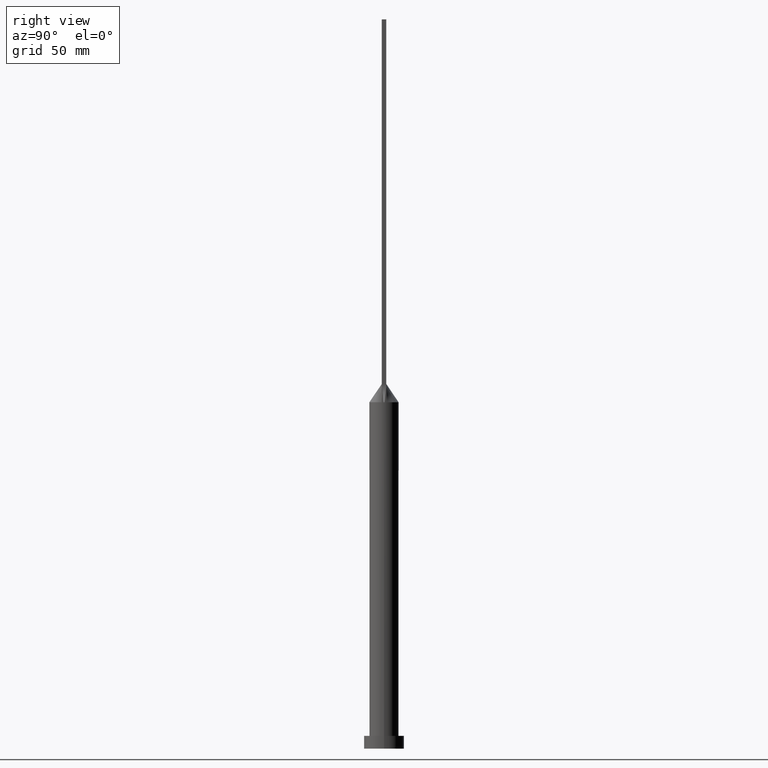
[diagram: clean part render]
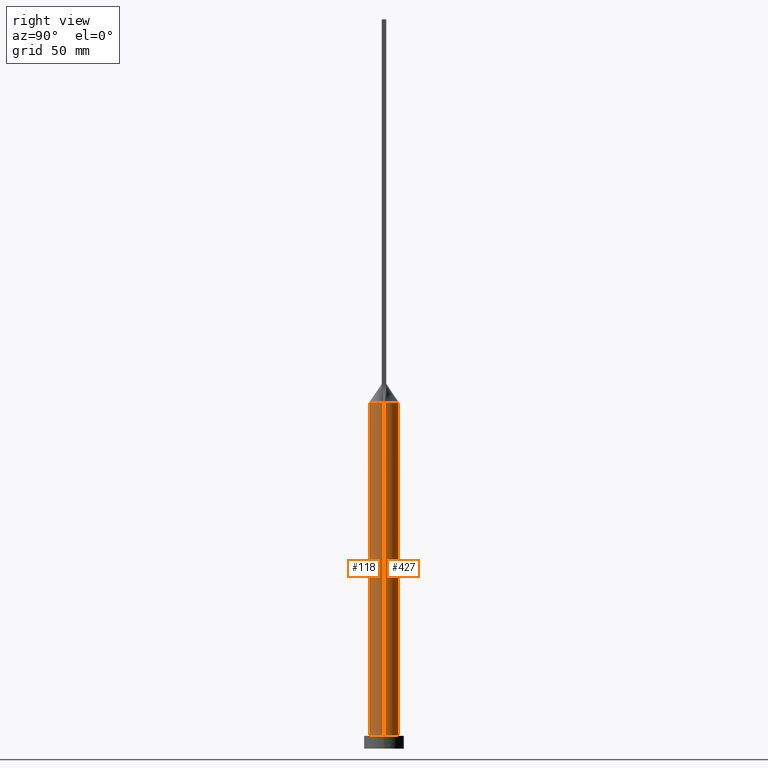
[diagram: same view with one multi-face feature highlighted, each face labeled with its STEP entity id]
A machine part, right view. The highlighted faces form ONE feature: a constant-radius fillet chain: 2 tangent blend faces with common blend radius 8 mm. The faces share edges in the B-rep.
Their STEP definitions:
[1] entity #427 (Cylinder):
#1 = DIRECTION ( 'NONE',  ( 0.000000000000000000, 0.000000000000000000, 1.000000000000000000 ) ) ;
#3 = CARTESIAN_POINT ( 'NONE',  ( 8.000000000000000000, 9.797174393178825657E-16, 190.0000000000000000 ) ) ;
#17 = CARTESIAN_POINT ( 'NONE',  ( 4.217034177653714799, 6.817775467282659818, 189.9999999999999716 ) ) ;
#19 = B_SPLINE_CURVE_WITH_KNOTS ( 'NONE', 3,
 ( #309, #627, #313, #260, #128, #183, #77, #70, #468, #17, #480, #378, #28, #382, #617, #222, #522, #212, #264, #22, #624, #216, #418, #370, #316, #196, #48, #343, #391, #443 ),
 .UNSPECIFIED., .F., .F.,
 ( 4, 2, 2, 2, 2, 2, 2, 2, 2, 2, 2, 2, 2, 2, 4 ),
 ( 0.000000000000000000, 0.1250000000000000000, 0.1875000000000000000, 0.2500000000000000000, 0.3125000000000000000, 0.3750000000000000000, 0.4375000000000000000, 0.5000000000000000000, 0.5625000000000000000, 0.6250000000000000000, 0.6875000000000000000, 0.7500000000000000000, 0.8125000000000000000, 0.8750000000000000000, 1.000000000000000000 ),
 .UNSPECIFIED. ) ;
#22 = CARTESIAN_POINT ( 'NONE',  ( -3.754841939107308235, 7.084924699190308317, 189.9999999999999716 ) ) ;
#26 = EDGE_LOOP ( 'NONE', ( #265, #361, #161, #630, #455, #367 ) ) ;
#28 = CARTESIAN_POINT ( 'NONE',  ( 2.232993174580878204, 7.702525839322459156, 190.0000000000000568 ) ) ;
#32 = CIRCLE ( 'NONE', #546, 8.000000000000000000 ) ;
#36 = DIRECTION ( 'NONE',  ( -0.000000000000000000, -0.000000000000000000, -1.000000000000000000 ) ) ;
#48 = CARTESIAN_POINT ( 'NONE',  ( -7.088837466865208548, 3.729743859143727747, 190.0000000000000284 ) ) ;
#49 = CARTESIAN_POINT ( 'NONE',  ( 0.000000000000000000, 0.000000000000000000, 7.000000000000000000 ) ) ;
#70 = CARTESIAN_POINT ( 'NONE',  ( 5.434261125067508580, 5.890653037160103800, 190.0000000000000284 ) ) ;
#77 = CARTESIAN_POINT ( 'NONE',  ( 6.100409024666552327, 5.197691498289451317, 190.0000000000000284 ) ) ;
#81 = DIRECTION ( 'NONE',  ( -1.000000000000000000, 0.000000000000000000, 0.000000000000000000 ) ) ;
#85 = DIRECTION ( 'NONE',  ( 0.000000000000000000, 0.000000000000000000, 1.000000000000000000 ) ) ;
#88 = CARTESIAN_POINT ( 'NONE',  ( 0.000000000000000000, 0.000000000000000000, 190.0000000000000000 ) ) ;
#102 = EDGE_CURVE ( 'NONE', #529, #371, #376, .T. ) ;
#113 = DIRECTION ( 'NONE',  ( 1.000000000000000000, 0.000000000000000000, 0.000000000000000000 ) ) ;
#125 = EDGE_CURVE ( 'NONE', #371, #326, #481, .T. ) ;
#126 = DIRECTION ( 'NONE',  ( 1.000000000000000000, 0.000000000000000000, 0.000000000000000000 ) ) ;
#128 = CARTESIAN_POINT ( 'NONE',  ( 6.883287261198673512, 4.100742229440780484, 190.0000000000000853 ) ) ;
#161 = ORIENTED_EDGE ( 'NONE', *, *, #323, .T. ) ;
#175 = CYLINDRICAL_SURFACE ( 'NONE', #200, 8.000000000000000000 ) ;
#178 = AXIS2_PLACEMENT_3D ( 'NONE', #49, #555, #113 ) ;
#183 = CARTESIAN_POINT ( 'NONE',  ( 6.389139692789920666, 4.834731051311459638, 190.0000000000000853 ) ) ;
#196 = CARTESIAN_POINT ( 'NONE',  ( -6.883287261198669960, 4.100742229440782260, 190.0000000000000568 ) ) ;
#200 = AXIS2_PLACEMENT_3D ( 'NONE', #268, #472, #81 ) ;
#212 = CARTESIAN_POINT ( 'NONE',  ( -2.232993174580875539, 7.702525839322460044, 190.0000000000000284 ) ) ;
#216 = CARTESIAN_POINT ( 'NONE',  ( -5.056714967162549534, 6.220536417275851271, 189.9999999999999716 ) ) ;
#222 = CARTESIAN_POINT ( 'NONE',  ( -0.5677556330368852544, 7.999999999999998224, 189.9999999999999432 ) ) ;
#223 = CARTESIAN_POINT ( 'NONE',  ( -8.000000000000000000, 0.000000000000000000, 190.0000000000000000 ) ) ;
#226 = EDGE_CURVE ( 'NONE', #415, #515, #640, .T. ) ;
#250 = VERTEX_POINT ( 'NONE', #405 ) ;
#252 = DIRECTION ( 'NONE',  ( 1.000000000000000000, 0.000000000000000000, 0.000000000000000000 ) ) ;
#260 = CARTESIAN_POINT ( 'NONE',  ( 7.088837466865212988, 3.729743859143727303, 190.0000000000000853 ) ) ;
#264 = CARTESIAN_POINT ( 'NONE',  ( -2.762781956618985291, 7.527418670504290255, 190.0000000000000284 ) ) ;
#265 = ORIENTED_EDGE ( 'NONE', *, *, #335, .F. ) ;
#268 = CARTESIAN_POINT ( 'NONE',  ( 0.000000000000000000, 0.000000000000000000, 190.0000000000000000 ) ) ;
#278 = VECTOR ( 'NONE', #36, 1000.000000000000000 ) ;
#288 = VECTOR ( 'NONE', #444, 1000.000000000000000 ) ;
#309 = CARTESIAN_POINT ( 'NONE',  ( 7.897939137640443974, 1.273861156091724789, 190.0000000000000000 ) ) ;
#313 = CARTESIAN_POINT ( 'NONE',  ( 7.597511974649646227, 2.632154125590748350, 190.0000000000000000 ) ) ;
#316 = CARTESIAN_POINT ( 'NONE',  ( -6.389139692789916225, 4.834731051311460526, 190.0000000000000568 ) ) ;
#323 = EDGE_CURVE ( 'NONE', #515, #326, #442, .T. ) ;
#325 = CARTESIAN_POINT ( 'NONE',  ( 7.999674421998661522, 1.953788361903730848E-15, 190.0000000000000000 ) ) ;
#326 = VERTEX_POINT ( 'NONE', #450 ) ;
#335 = EDGE_CURVE ( 'NONE', #415, #250, #32, .T. ) ;
#343 = CARTESIAN_POINT ( 'NONE',  ( -7.597511974649647115, 2.632154125590751903, 190.0000000000000284 ) ) ;
#344 = AXIS2_PLACEMENT_3D ( 'NONE', #88, #85, #126 ) ;
#346 = CARTESIAN_POINT ( 'NONE',  ( -7.999674421998661522, -1.996358676257538358E-15, 190.0000000000000000 ) ) ;
#348 = CARTESIAN_POINT ( 'NONE',  ( 0.000000000000000000, 0.000000000000000000, 190.0000000000000000 ) ) ;
#361 = ORIENTED_EDGE ( 'NONE', *, *, #226, .T. ) ;
#367 = ORIENTED_EDGE ( 'NONE', *, *, #488, .F. ) ;
#370 = CARTESIAN_POINT ( 'NONE',  ( -6.100409024666552327, 5.197691498289451317, 189.9999999999999432 ) ) ;
#371 = VERTEX_POINT ( 'NONE', #346 ) ;
#376 = CIRCLE ( 'NONE', #344, 8.000000000000000000 ) ;
#378 = CARTESIAN_POINT ( 'NONE',  ( 2.762781956618984847, 7.527418670504289366, 190.0000000000000284 ) ) ;
#382 = CARTESIAN_POINT ( 'NONE',  ( 1.135368687448996328, 7.938897956688654389, 190.0000000000000284 ) ) ;
#391 = CARTESIAN_POINT ( 'NONE',  ( -7.793128424795161102, 1.923622864214273198, 190.0000000000000284 ) ) ;
#405 = CARTESIAN_POINT ( 'NONE',  ( 7.897939137640443974, 1.273861156091724789, 190.0000000000000000 ) ) ;
#415 = VERTEX_POINT ( 'NONE', #325 ) ;
#418 = CARTESIAN_POINT ( 'NONE',  ( -5.434261125067506804, 5.890653037160105576, 190.0000000000000284 ) ) ;
#427 = ADVANCED_FACE ( 'NONE', ( #572 ), #175, .T. ) ;
#442 = CIRCLE ( 'NONE', #178, 8.000000000000000000 ) ;
#443 = CARTESIAN_POINT ( 'NONE',  ( -7.897950825069725234, 1.273863048877633020, 190.0000000000000000 ) ) ;
#444 = DIRECTION ( 'NONE',  ( -0.000000000000000000, -0.000000000000000000, -1.000000000000000000 ) ) ;
#450 = CARTESIAN_POINT ( 'NONE',  ( -8.000000000000000000, 0.000000000000000000, 7.000000000000000000 ) ) ;
#451 = CARTESIAN_POINT ( 'NONE',  ( -7.897950825069725234, 1.273863048877633020, 190.0000000000000000 ) ) ;
#455 = ORIENTED_EDGE ( 'NONE', *, *, #102, .F. ) ;
#468 = CARTESIAN_POINT ( 'NONE',  ( 5.056714967162550423, 6.220536417275850383, 190.0000000000000284 ) ) ;
#472 = DIRECTION ( 'NONE',  ( -0.000000000000000000, -0.000000000000000000, -1.000000000000000000 ) ) ;
#480 = CARTESIAN_POINT ( 'NONE',  ( 3.754841939107309567, 7.084924699190306541, 190.0000000000000284 ) ) ;
#481 = LINE ( 'NONE', #223, #278 ) ;
#488 = EDGE_CURVE ( 'NONE', #250, #529, #19, .T. ) ;
#515 = VERTEX_POINT ( 'NONE', #607 ) ;
#522 = CARTESIAN_POINT ( 'NONE',  ( -1.135368687448994329, 7.938897956688654389, 190.0000000000000853 ) ) ;
#529 = VERTEX_POINT ( 'NONE', #451 ) ;
#546 = AXIS2_PLACEMENT_3D ( 'NONE', #348, #1, #252 ) ;
#555 = DIRECTION ( 'NONE',  ( 0.000000000000000000, 0.000000000000000000, 1.000000000000000000 ) ) ;
#572 = FACE_OUTER_BOUND ( 'NONE', #26, .T. ) ;
#607 = CARTESIAN_POINT ( 'NONE',  ( 8.000000000000000000, 9.797174393178825657E-16, 7.000000000000000000 ) ) ;
#617 = CARTESIAN_POINT ( 'NONE',  ( 0.5677556330368851434, 7.999999999999998224, 190.0000000000000000 ) ) ;
#624 = CARTESIAN_POINT ( 'NONE',  ( -4.217034177653714799, 6.817775467282660706, 190.0000000000000284 ) ) ;
#627 = CARTESIAN_POINT ( 'NONE',  ( 7.793128424795161990, 1.923622864214272088, 190.0000000000000000 ) ) ;
#630 = ORIENTED_EDGE ( 'NONE', *, *, #125, .F. ) ;
#640 = LINE ( 'NONE', #3, #288 ) ;
[2] entity #118 (Cylinder):
#3 = CARTESIAN_POINT ( 'NONE',  ( 8.000000000000000000, 9.797174393178825657E-16, 190.0000000000000000 ) ) ;
#36 = DIRECTION ( 'NONE',  ( -0.000000000000000000, -0.000000000000000000, -1.000000000000000000 ) ) ;
#38 = CARTESIAN_POINT ( 'NONE',  ( -7.897940634034629426, -1.273861398824698732, 190.0000000000000000 ) ) ;
#54 = AXIS2_PLACEMENT_3D ( 'NONE', #225, #66, #423 ) ;
#62 = AXIS2_PLACEMENT_3D ( 'NONE', #582, #286, #176 ) ;
#66 = DIRECTION ( 'NONE',  ( 0.000000000000000000, 0.000000000000000000, 1.000000000000000000 ) ) ;
#68 = ORIENTED_EDGE ( 'NONE', *, *, #379, .F. ) ;
#82 = FACE_OUTER_BOUND ( 'NONE', #564, .T. ) ;
#84 = CIRCLE ( 'NONE', #54, 8.000000000000000000 ) ;
#94 = CARTESIAN_POINT ( 'NONE',  ( 7.897952327758385849, -1.273863293446191536, 190.0000000000000000 ) ) ;
#95 = CIRCLE ( 'NONE', #489, 8.000000000000000000 ) ;
#118 = ADVANCED_FACE ( 'NONE', ( #82 ), #187, .T. ) ;
#120 = DIRECTION ( 'NONE',  ( 1.000000000000000000, 0.000000000000000000, 0.000000000000000000 ) ) ;
#125 = EDGE_CURVE ( 'NONE', #371, #326, #481, .T. ) ;
#173 = VERTEX_POINT ( 'NONE', #94 ) ;
#176 = DIRECTION ( 'NONE',  ( -1.000000000000000000, 0.000000000000000000, 0.000000000000000000 ) ) ;
#187 = CYLINDRICAL_SURFACE ( 'NONE', #62, 8.000000000000000000 ) ;
#223 = CARTESIAN_POINT ( 'NONE',  ( -8.000000000000000000, 0.000000000000000000, 190.0000000000000000 ) ) ;
#225 = CARTESIAN_POINT ( 'NONE',  ( 0.000000000000000000, 0.000000000000000000, 190.0000000000000000 ) ) ;
#226 = EDGE_CURVE ( 'NONE', #415, #515, #640, .T. ) ;
#275 = CARTESIAN_POINT ( 'NONE',  ( 0.000000000000000000, 0.000000000000000000, 7.000000000000000000 ) ) ;
#278 = VECTOR ( 'NONE', #36, 1000.000000000000000 ) ;
#280 = CIRCLE ( 'NONE', #387, 8.000000000000000000 ) ;
#286 = DIRECTION ( 'NONE',  ( -0.000000000000000000, -0.000000000000000000, -1.000000000000000000 ) ) ;
#288 = VECTOR ( 'NONE', #444, 1000.000000000000000 ) ;
#298 = CARTESIAN_POINT ( 'NONE',  ( 0.000000000000000000, 0.000000000000000000, 190.0000000000000000 ) ) ;
#321 = DIRECTION ( 'NONE',  ( 0.000000000000000000, 0.000000000000000000, 1.000000000000000000 ) ) ;
#325 = CARTESIAN_POINT ( 'NONE',  ( 7.999674421998661522, 1.953788361903730848E-15, 190.0000000000000000 ) ) ;
#326 = VERTEX_POINT ( 'NONE', #450 ) ;
#341 = DIRECTION ( 'NONE',  ( 0.000000000000000000, 0.000000000000000000, 1.000000000000000000 ) ) ;
#346 = CARTESIAN_POINT ( 'NONE',  ( -7.999674421998661522, -1.996358676257538358E-15, 190.0000000000000000 ) ) ;
#366 = DIRECTION ( 'NONE',  ( 1.000000000000000000, 1.776356839400250465E-15, 0.000000000000000000 ) ) ;
#371 = VERTEX_POINT ( 'NONE', #346 ) ;
#379 = EDGE_CURVE ( 'NONE', #173, #415, #280, .T. ) ;
#387 = AXIS2_PLACEMENT_3D ( 'NONE', #298, #341, #366 ) ;
#407 = EDGE_CURVE ( 'NONE', #326, #515, #95, .T. ) ;
#408 = ORIENTED_EDGE ( 'NONE', *, *, #407, .T. ) ;
#415 = VERTEX_POINT ( 'NONE', #325 ) ;
#416 = CIRCLE ( 'NONE', #453, 8.000000000000000000 ) ;
#421 = EDGE_CURVE ( 'NONE', #371, #504, #84, .T. ) ;
#423 = DIRECTION ( 'NONE',  ( 1.000000000000000000, 0.000000000000000000, 0.000000000000000000 ) ) ;
#426 = CARTESIAN_POINT ( 'NONE',  ( 0.000000000000000000, 0.000000000000000000, 190.0000000000000000 ) ) ;
#444 = DIRECTION ( 'NONE',  ( -0.000000000000000000, -0.000000000000000000, -1.000000000000000000 ) ) ;
#449 = EDGE_CURVE ( 'NONE', #504, #173, #416, .T. ) ;
#450 = CARTESIAN_POINT ( 'NONE',  ( -8.000000000000000000, 0.000000000000000000, 7.000000000000000000 ) ) ;
#453 = AXIS2_PLACEMENT_3D ( 'NONE', #426, #620, #120 ) ;
#478 = ORIENTED_EDGE ( 'NONE', *, *, #421, .F. ) ;
#481 = LINE ( 'NONE', #223, #278 ) ;
#486 = ORIENTED_EDGE ( 'NONE', *, *, #226, .F. ) ;
#489 = AXIS2_PLACEMENT_3D ( 'NONE', #275, #321, #518 ) ;
#504 = VERTEX_POINT ( 'NONE', #38 ) ;
#512 = ORIENTED_EDGE ( 'NONE', *, *, #449, .F. ) ;
#515 = VERTEX_POINT ( 'NONE', #607 ) ;
#518 = DIRECTION ( 'NONE',  ( 1.000000000000000000, 0.000000000000000000, 0.000000000000000000 ) ) ;
#526 = ORIENTED_EDGE ( 'NONE', *, *, #125, .T. ) ;
#564 = EDGE_LOOP ( 'NONE', ( #486, #68, #512, #478, #526, #408 ) ) ;
#582 = CARTESIAN_POINT ( 'NONE',  ( 0.000000000000000000, 0.000000000000000000, 190.0000000000000000 ) ) ;
#607 = CARTESIAN_POINT ( 'NONE',  ( 8.000000000000000000, 9.797174393178825657E-16, 7.000000000000000000 ) ) ;
#620 = DIRECTION ( 'NONE',  ( 0.000000000000000000, 0.000000000000000000, 1.000000000000000000 ) ) ;
#640 = LINE ( 'NONE', #3, #288 ) ;